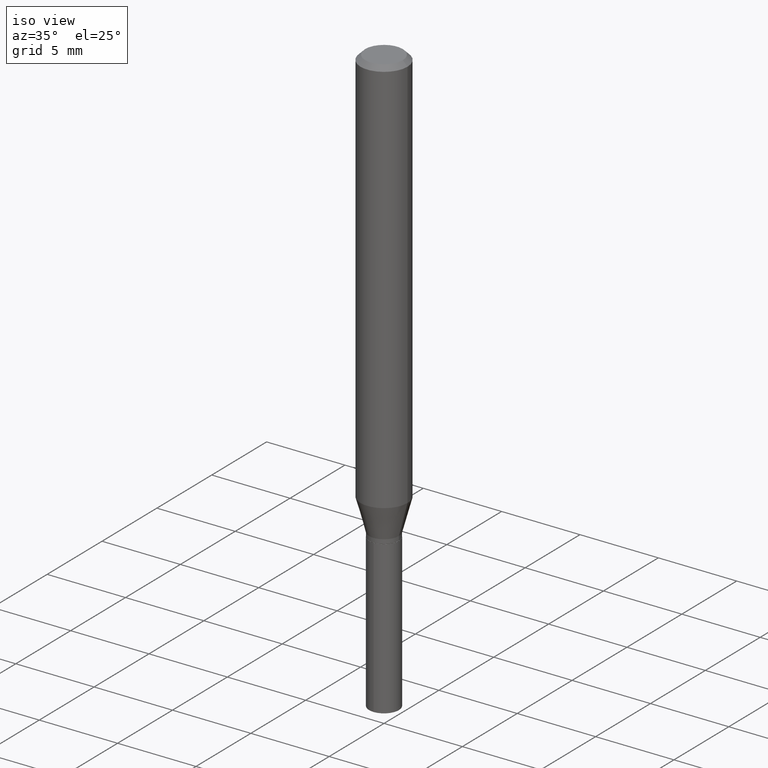
[diagram: clean part render]
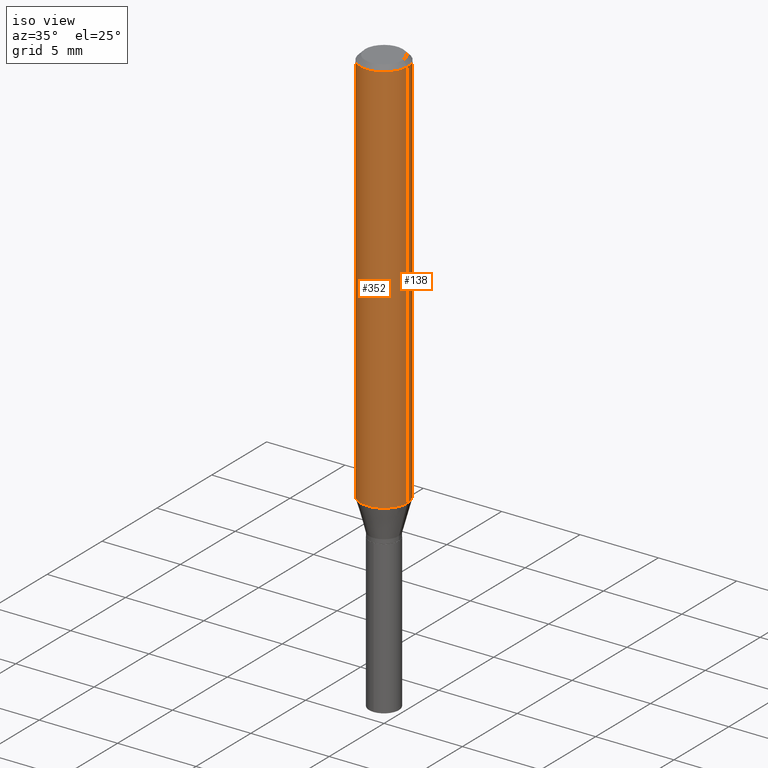
[diagram: same view with one multi-face feature highlighted, each face labeled with its STEP entity id]
A machine part, iso view. The highlighted faces form ONE feature: a constant-radius fillet chain: 2 tangent blend faces with common blend radius 1.4999 mm. The faces share edges in the B-rep.
Their STEP definitions:
[1] entity #352 (Cylinder):
#5 = CARTESIAN_POINT ( 'NONE',  ( 2.888098660104663328E-31, -4.123439461173779030E-17, -0.01181000000000006871 ) ) ;
#16 = AXIS2_PLACEMENT_3D ( 'NONE', #272, #163, #383 ) ;
#18 = EDGE_CURVE ( 'NONE', #371, #471, #290, .T. ) ;
#31 = ORIENTED_EDGE ( 'NONE', *, *, #461, .T. ) ;
#32 = EDGE_CURVE ( 'NONE', #241, #113, #482, .T. ) ;
#37 = ORIENTED_EDGE ( 'NONE', *, *, #18, .T. ) ;
#38 = CARTESIAN_POINT ( 'NONE',  ( -0.05905000000000013016, -3.080638397409715061E-15, -1.002501100016133240 ) ) ;
#66 = ORIENTED_EDGE ( 'NONE', *, *, #405, .F. ) ;
#89 = DIRECTION ( 'NONE',  ( -2.445468806185136597E-29, 3.491481338843145583E-15, 1.000000000000000000 ) ) ;
#96 = CARTESIAN_POINT ( 'NONE',  ( 0.05905000000000013016, -3.912557828993430263E-15, -1.002501100016133240 ) ) ;
#113 = VERTEX_POINT ( 'NONE', #244 ) ;
#123 = CYLINDRICAL_SURFACE ( 'NONE', #329, 0.05905000000000006771 ) ;
#135 = DIRECTION ( 'NONE',  ( -2.445468806185136877E-29, 3.491481338843145188E-15, 1.000000000000000000 ) ) ;
#137 = CARTESIAN_POINT ( 'NONE',  ( -0.05905000000000006771, 4.195754854663396409E-16, -2.904631170795525045E-30 ) ) ;
#163 = DIRECTION ( 'NONE',  ( -2.445468806185136597E-29, 3.491481338843145583E-15, 1.000000000000000000 ) ) ;
#166 = DIRECTION ( 'NONE',  ( 1.000000000000000000, -6.982962677686266711E-15, 4.876176775795936353E-29 ) ) ;
#180 = EDGE_LOOP ( 'NONE', ( #66, #37, #31, #365 ) ) ;
#220 = VECTOR ( 'NONE', #135, 39.37007874015748143 ) ;
#239 = VECTOR ( 'NONE', #350, 39.37007874015748143 ) ;
#241 = VERTEX_POINT ( 'NONE', #301 ) ;
#244 = CARTESIAN_POINT ( 'NONE',  ( 0.05904999999999999832, -4.535783407291118600E-16, -0.01181000000000006871 ) ) ;
#272 = CARTESIAN_POINT ( 'NONE',  ( 2.451585168255739892E-29, -3.500213882876055342E-15, -1.002501100016133240 ) ) ;
#278 = FACE_OUTER_BOUND ( 'NONE', #180, .T. ) ;
#290 = CIRCLE ( 'NONE', #16, 0.05905000000000013016 ) ;
#299 = CARTESIAN_POINT ( 'NONE',  ( 0.000000000000000000, 0.000000000000000000, 0.000000000000000000 ) ) ;
#301 = CARTESIAN_POINT ( 'NONE',  ( -0.05904999999999999832, -1.351148653277556254E-15, -0.01181000000000006871 ) ) ;
#306 = DIRECTION ( 'NONE',  ( -2.445468806185136597E-29, 3.491481338843145583E-15, 1.000000000000000000 ) ) ;
#329 = AXIS2_PLACEMENT_3D ( 'NONE', #299, #89, #166 ) ;
#350 = DIRECTION ( 'NONE',  ( -2.445468806185136877E-29, 3.491481338843145188E-15, 1.000000000000000000 ) ) ;
#352 = ADVANCED_FACE ( 'NONE', ( #278 ), #123, .T. ) ;
#353 = CARTESIAN_POINT ( 'NONE',  ( 0.05905000000000006771, -4.123439461173745257E-16, 2.879382386107503723E-30 ) ) ;
#365 = ORIENTED_EDGE ( 'NONE', *, *, #32, .F. ) ;
#371 = VERTEX_POINT ( 'NONE', #38 ) ;
#383 = DIRECTION ( 'NONE',  ( 1.000000000000000000, -6.982962677686265133E-15, 0.000000000000000000 ) ) ;
#405 = EDGE_CURVE ( 'NONE', #371, #241, #432, .T. ) ;
#432 = LINE ( 'NONE', #137, #239 ) ;
#451 = DIRECTION ( 'NONE',  ( 1.000000000000000000, -6.982962677686266711E-15, 0.000000000000000000 ) ) ;
#461 = EDGE_CURVE ( 'NONE', #471, #113, #462, .T. ) ;
#462 = LINE ( 'NONE', #353, #220 ) ;
#471 = VERTEX_POINT ( 'NONE', #96 ) ;
#475 = AXIS2_PLACEMENT_3D ( 'NONE', #5, #306, #451 ) ;
#482 = CIRCLE ( 'NONE', #475, 0.05904999999999999832 ) ;
[2] entity #138 (Cylinder):
#35 = CIRCLE ( 'NONE', #261, 0.05904999999999999832 ) ;
#38 = CARTESIAN_POINT ( 'NONE',  ( -0.05905000000000013016, -3.080638397409715061E-15, -1.002501100016133240 ) ) ;
#40 = DIRECTION ( 'NONE',  ( 1.000000000000000000, -6.982962677686265133E-15, 0.000000000000000000 ) ) ;
#46 = DIRECTION ( 'NONE',  ( -2.445468806185136597E-29, 3.491481338843145583E-15, 1.000000000000000000 ) ) ;
#49 = EDGE_LOOP ( 'NONE', ( #75, #472, #61, #118 ) ) ;
#55 = AXIS2_PLACEMENT_3D ( 'NONE', #210, #46, #235 ) ;
#61 = ORIENTED_EDGE ( 'NONE', *, *, #430, .F. ) ;
#75 = ORIENTED_EDGE ( 'NONE', *, *, #177, .T. ) ;
#96 = CARTESIAN_POINT ( 'NONE',  ( 0.05905000000000013016, -3.912557828993430263E-15, -1.002501100016133240 ) ) ;
#99 = CARTESIAN_POINT ( 'NONE',  ( 2.888098660104663328E-31, -4.123439461173779030E-17, -0.01181000000000006871 ) ) ;
#113 = VERTEX_POINT ( 'NONE', #244 ) ;
#118 = ORIENTED_EDGE ( 'NONE', *, *, #461, .F. ) ;
#135 = DIRECTION ( 'NONE',  ( -2.445468806185136877E-29, 3.491481338843145188E-15, 1.000000000000000000 ) ) ;
#137 = CARTESIAN_POINT ( 'NONE',  ( -0.05905000000000006771, 4.195754854663396409E-16, -2.904631170795525045E-30 ) ) ;
#138 = ADVANCED_FACE ( 'NONE', ( #380 ), #176, .T. ) ;
#176 = CYLINDRICAL_SURFACE ( 'NONE', #55, 0.05905000000000006771 ) ;
#177 = EDGE_CURVE ( 'NONE', #471, #371, #324, .T. ) ;
#210 = CARTESIAN_POINT ( 'NONE',  ( 0.000000000000000000, 0.000000000000000000, 0.000000000000000000 ) ) ;
#220 = VECTOR ( 'NONE', #135, 39.37007874015748143 ) ;
#235 = DIRECTION ( 'NONE',  ( 1.000000000000000000, -6.982962677686266711E-15, 4.876176775795936353E-29 ) ) ;
#239 = VECTOR ( 'NONE', #350, 39.37007874015748143 ) ;
#241 = VERTEX_POINT ( 'NONE', #301 ) ;
#243 = CARTESIAN_POINT ( 'NONE',  ( 2.451585168255739892E-29, -3.500213882876055342E-15, -1.002501100016133240 ) ) ;
#244 = CARTESIAN_POINT ( 'NONE',  ( 0.05904999999999999832, -4.535783407291118600E-16, -0.01181000000000006871 ) ) ;
#261 = AXIS2_PLACEMENT_3D ( 'NONE', #99, #470, #351 ) ;
#301 = CARTESIAN_POINT ( 'NONE',  ( -0.05904999999999999832, -1.351148653277556254E-15, -0.01181000000000006871 ) ) ;
#324 = CIRCLE ( 'NONE', #339, 0.05905000000000013016 ) ;
#339 = AXIS2_PLACEMENT_3D ( 'NONE', #243, #459, #40 ) ;
#350 = DIRECTION ( 'NONE',  ( -2.445468806185136877E-29, 3.491481338843145188E-15, 1.000000000000000000 ) ) ;
#351 = DIRECTION ( 'NONE',  ( 1.000000000000000000, -6.982962677686266711E-15, 0.000000000000000000 ) ) ;
#353 = CARTESIAN_POINT ( 'NONE',  ( 0.05905000000000006771, -4.123439461173745257E-16, 2.879382386107503723E-30 ) ) ;
#371 = VERTEX_POINT ( 'NONE', #38 ) ;
#380 = FACE_OUTER_BOUND ( 'NONE', #49, .T. ) ;
#405 = EDGE_CURVE ( 'NONE', #371, #241, #432, .T. ) ;
#430 = EDGE_CURVE ( 'NONE', #113, #241, #35, .T. ) ;
#432 = LINE ( 'NONE', #137, #239 ) ;
#459 = DIRECTION ( 'NONE',  ( -2.445468806185136597E-29, 3.491481338843145583E-15, 1.000000000000000000 ) ) ;
#461 = EDGE_CURVE ( 'NONE', #471, #113, #462, .T. ) ;
#462 = LINE ( 'NONE', #353, #220 ) ;
#470 = DIRECTION ( 'NONE',  ( -2.445468806185136597E-29, 3.491481338843145583E-15, 1.000000000000000000 ) ) ;
#471 = VERTEX_POINT ( 'NONE', #96 ) ;
#472 = ORIENTED_EDGE ( 'NONE', *, *, #405, .T. ) ;